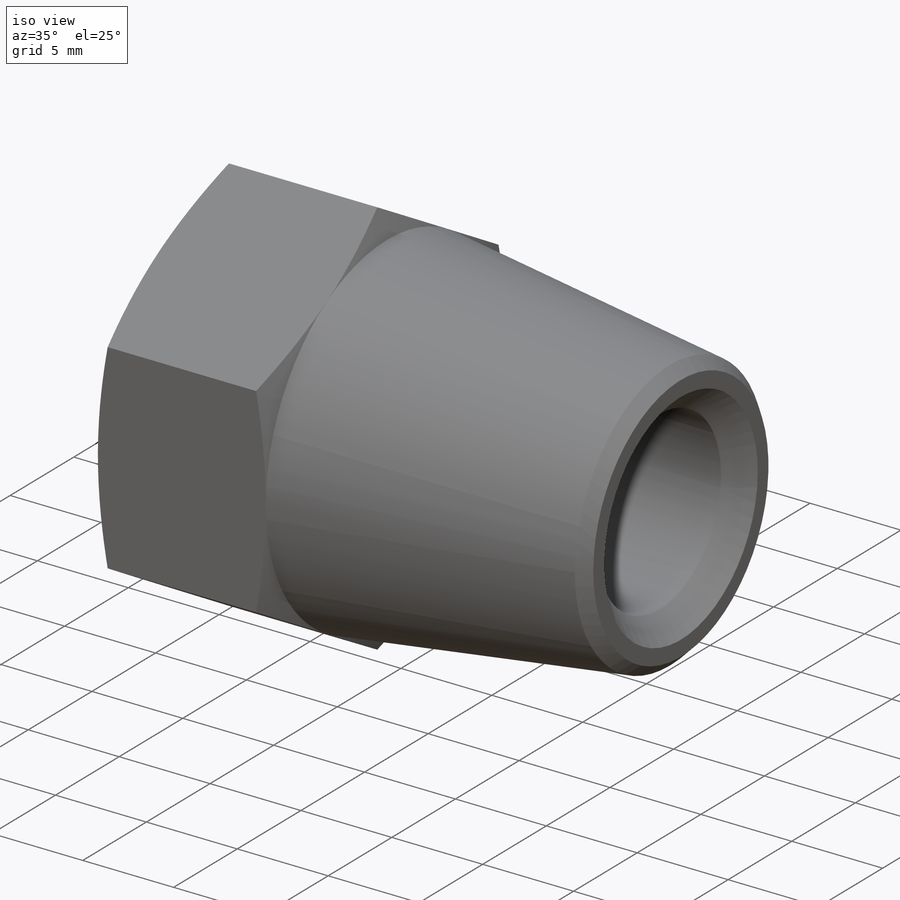
[diagram: iso view]
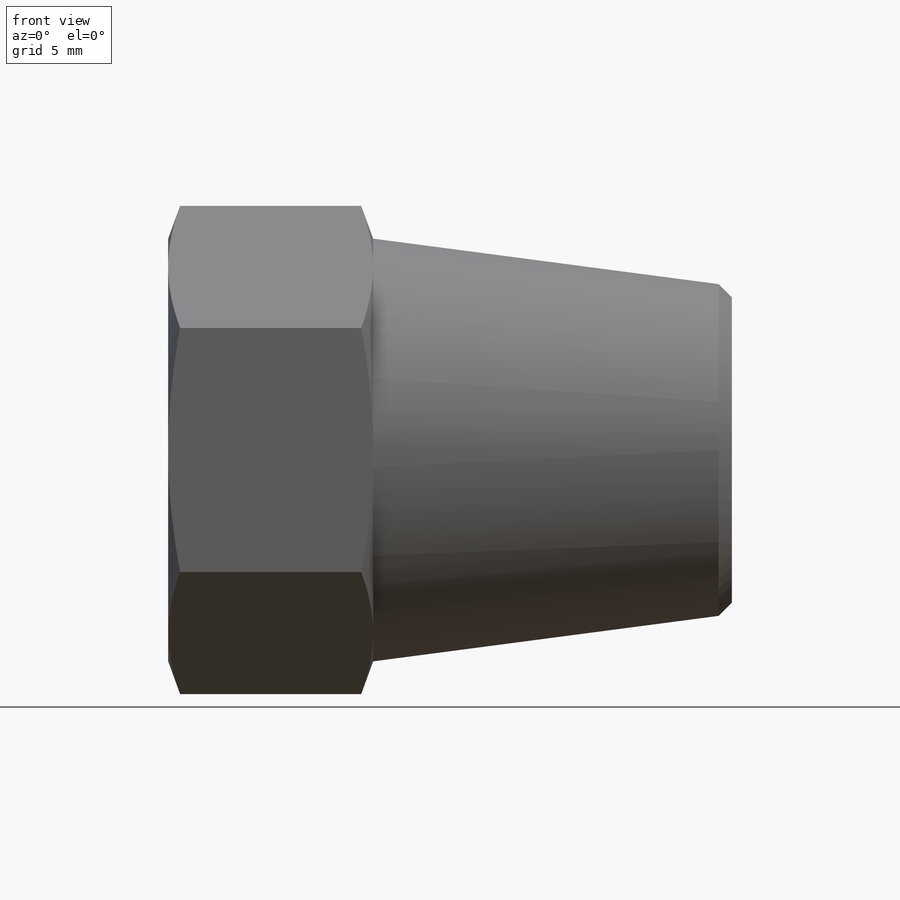
[diagram: front view]
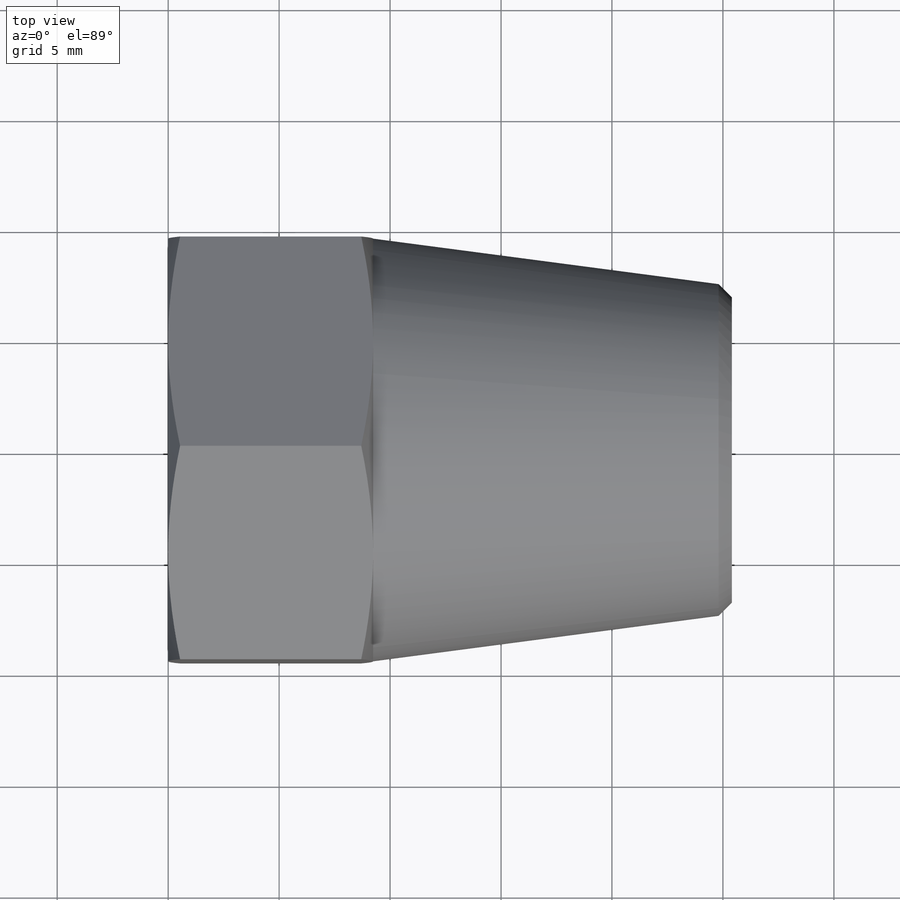
[diagram: top view]
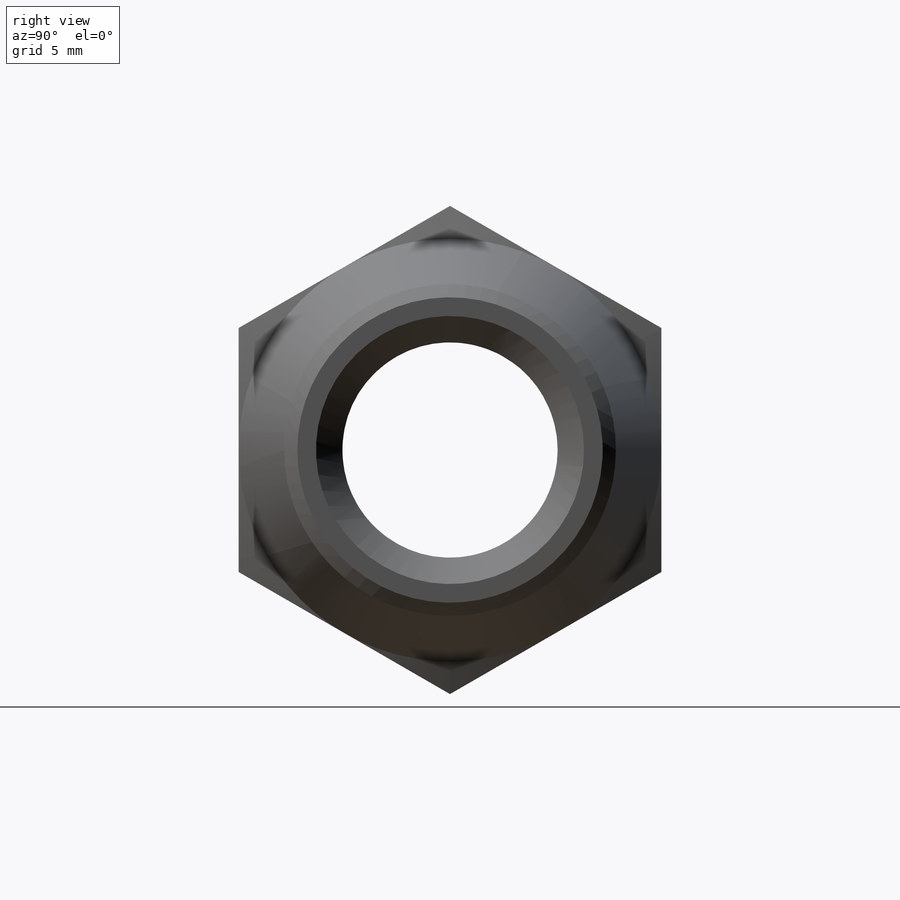
[diagram: right view]
SOLIDWORKS PART (.sldprt)
format: sldprt  version: not decoded by parser v0  size: 738,816 bytes
history: native  units: mm
features: sketch x9, cut_extrude x3, revolve x2, material x1, helix x1, sweep x1, extrude x1, boolean_combine x1, cut_revolve x1 (+13 scaffold rows collapsed)
feature tree (33):
  scaffold x13  (default folders/planes/origin — collapsed)
  material  "Material <not specified>"
  sketch  "Sketch1"  dims[c1.D1=~16.540476mm c2.D1=60.0deg c2.E0=12.1158mm c2.Thread Pitch=~1.411111mm c2.D4=~0.177469mm c3.D4=3.58deg c3.D5=~0.078395mm c3.D2=~0.046567mm c3.D3=~0.053797mm c3.L2 Thread Engagement=10.2108mm c3.L4 Thread Length=~15.10284mm c3.ID=49.2506mm c3.Pipe OD=13.716mm c3.R=~13.096875mm c4.D5=10.2108mm c4.D=19.304mm c4.D6=~6.207125mm c4.Thread Dia=15.875mm c4.D1=~8.466667mm c4.L=25.4mm]
  revolve  "Revolve1"  Angle=360deg
  sketch  "Sketch12"  dims[D1=0.0mm]
  helix  "Helix/Spiral1"  Pitch=9.877778mm
  sketch  "Sketch13"  dims[c1.D1=~4.227081mm c2.D1=60.0deg c2.D2=~0.176389mm c2.D3=~0.705556mm]
  sweep  "Cut-Sweep1"
  sketch  "Sketch4"  dims[Hex=19.05mm]
  extrude  "Extrude1"  Depth=9.236364mm
  boolean_combine  "Combine1"
  sketch  "Sketch9"
  cut_extrude  "Cut-Extrude1"  [1 undecoded]
  sketch  "Sketch10"
  cut_extrude  "Cut-Extrude2"  [1 undecoded]
  sketch  "Sketch11"
  cut_extrude  "Cut-Extrude3"  [1 undecoded]
  sketch  "Sketch5"  dims[c1.D=9.7028mm c1.D1=~0.482712mm c2.D1=45.0deg c2.D2=~20.227636mm c3.D2=7.5deg]
  revolve  "Revolve2"  Angle=360deg
  sketch  "Sketch7"  dims[c1.D1=~8.513367mm c2.D1=45.0deg]
  cut_revolve  "Cut-Revolve3"  Angle=360deg
decode coverage: 11 of 19 modeling features carry decoded parameters
note: ~ marks probable driven/reference dimensions
note: 3 parameter values undecoded
summary: no parameter record found for 3 features
note: suppression state not decoded; provenance and decode notes live in map.json
